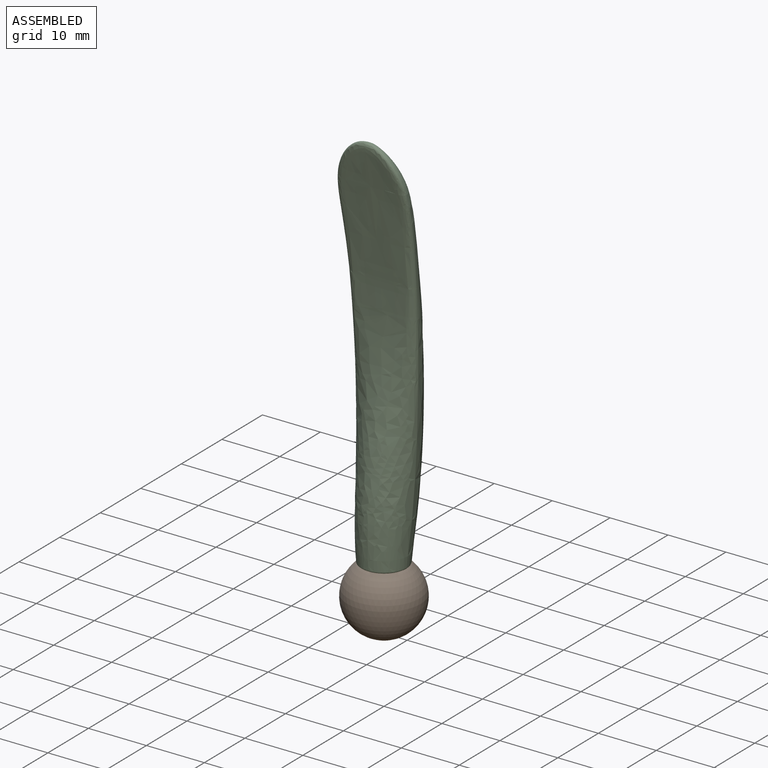
[diagram: assembled view]
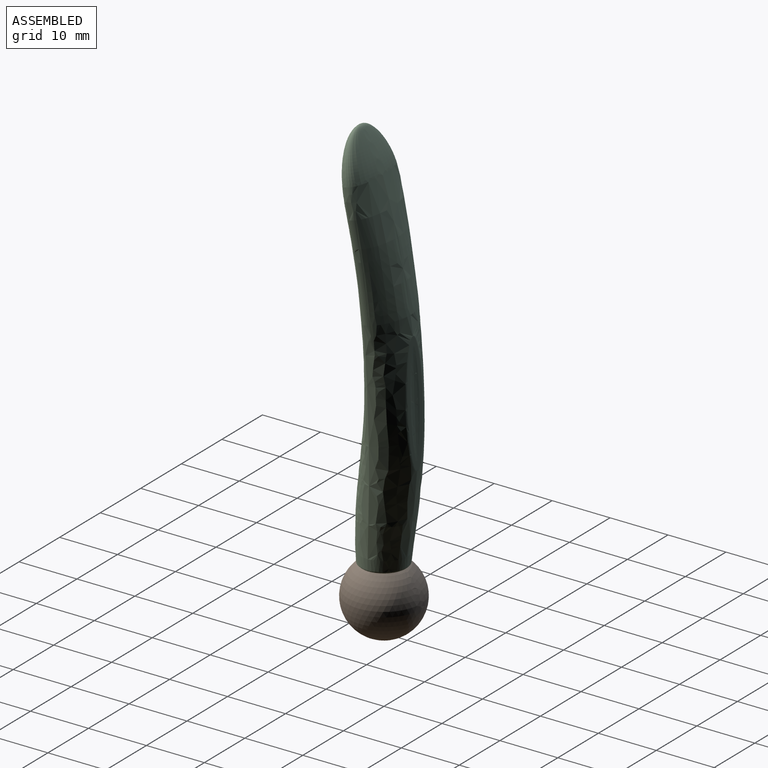
[diagram: assembled view, second angle]
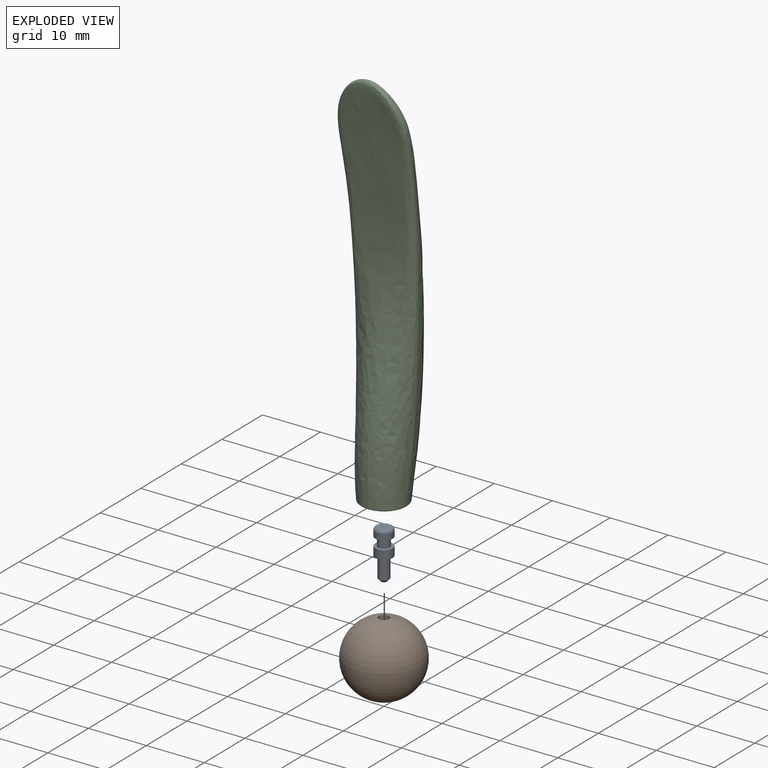
[diagram: exploded view]
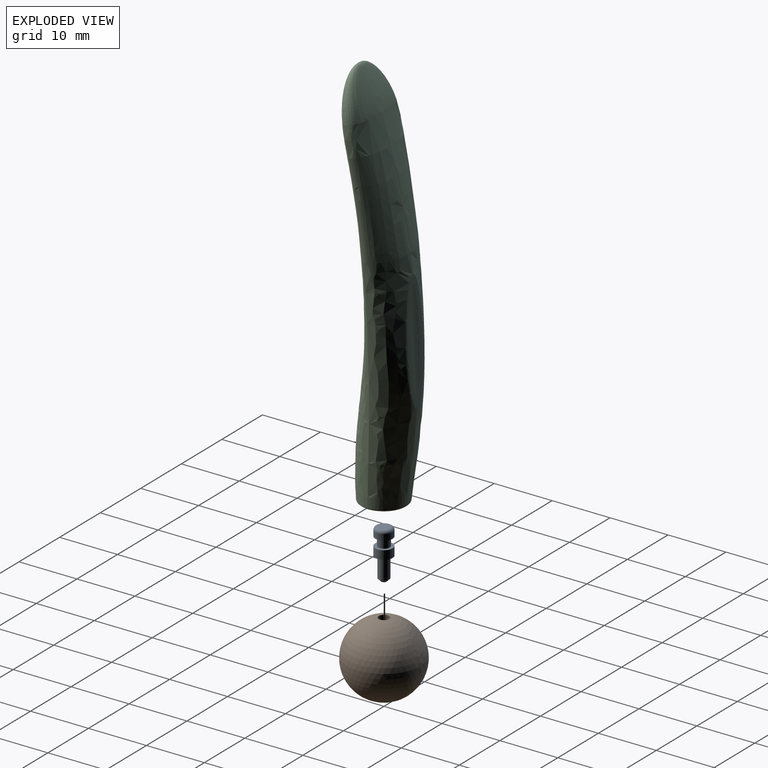
[diagram: exploded view, second angle]
ASSEMBLY  parts=3 mates=3
PART A: 11 faces, bbox 3.2x8.5x3.2 mm
  f0: cylinder r=1.5mm len=3mm, axis (0,1,0), area 14.1mm2, adj f3,f4
  f1: cylinder r=0.93mm len=3.5mm, axis (0,1,0), area 20.3mm2, adj f3,f10
  f2: plane 0.85x0.85mm, normal (0,1,0), area 0.6mm2, adj f10
  f3: plane 3x3mm, normal (0,1,0), area 4.4mm2, adj f0,f1
  f4: plane 3x3mm, normal (0,-1,0), area 3.9mm2, adj f0,f6
  f5: plane 3x3mm, normal (0,1,0), area 3.9mm2, adj f6,f9
  f6: cylinder r=1mm len=2mm, axis (0,-1,0), area 9.4mm2, adj f4,f5
  f7: plane 2x2mm, normal (0,-1,0), area 3.1mm2, adj f8
  f8: torus R=1mm, axis (0,-1,0), area 6.5mm2, adj f7,f9
  f9: cylinder r=1.5mm len=3mm, axis (0,1,0), area 9.4mm2, adj f5,f8
  f10: cone r=0.93mm half-angle=45deg, axis (0,-1,0), area 3mm2, adj f1,f2
PART B: 3 faces, bbox 12.7x12.7x12.6 mm
  f0: sphere r=6.35mm, area 504.1mm2, adj f1
  f1: cylinder r=0.9mm len=4.29mm, axis (0,0,1), area 24.2mm2, adj f0,f2
  f2: plane 1.8x1.8mm, normal (0,0,1), area 2.5mm2, adj f1
PART C: 80 faces, bbox 12.4x68.5x14.3 mm
  f0: bspline ~7.31x5.9mm, area 25.7mm2, adj f1,f78,f79
  f1: bspline ~9.32x6.21mm, area 16.5mm2, adj f0,f2,f76,f77
  f2: bspline ~6.68x4.87mm, area 13mm2, adj f1,f3,f75
  f3: bspline ~6.68x4.9mm, area 13mm2, adj f2,f4,f76
  f4: bspline ~10.66x4.89mm, area 41.4mm2, adj f3,f5,f74,f75
  f5: bspline ~9.56x6.87mm, area 65.7mm2, adj f4,f6,f7,f73,f74,f75,f77
  f6: bspline ~6.07x1.21mm, area 8.5mm2, adj f5,f7,f77,f79
  f7: bspline ~11.54x5.24mm, area 62mm2, adj f5,f6,f8,f72,f73,f79
  f8: bspline ~21x6.15mm, area 157.4mm2, adj f7,f9,f73,f74,f78,f79
  f9: bspline ~34.95x8.57mm, area 209.2mm2, adj f8,f10,f59,f70,f71,f72
  f10: bspline ~7.04x5.84mm, area 38.2mm2, adj f9,f11,f12,f72
  f11: bspline ~7.04x5.84mm, area 38mm2, adj f10,f12,f71,f72
  f12: bspline ~8.31x5mm, area 23mm2, adj f10,f11,f13,f58,f72
  f13: bspline ~7.91x4.05mm, area 7.3mm2, adj f12,f14,f16,f17
  f14: sphere r=6.4mm, area 0.2mm2, adj f13,f15,f16,f17
  f15: sphere r=6.4mm, area 0.6mm2, adj f14,f16,f17
  f16: bspline ~7.91x3.93mm, area 7.3mm2, adj f13,f14,f15,f17,f58
  f17: plane 7.03x6.94mm, normal (0,-0.99,0.13), area -0.8mm2, adj f13,f14,f15,f16,f18
  f18: sphere r=6.3mm, area 29mm2, adj f17,f19,f27,f28,f29,f30,f31,f32
  f19: cylinder r=1.5mm len=1.87mm, axis (0,-0.99,0.13), area 1.2mm2, adj f18,f20,f27,f57
  f20: plane 3.37x3.33mm, normal (0,-0.99,0.13), area 3mm2, adj f19,f21,f27,f28,f29,f30,f31,f32
  f21: torus R=1.2mm, axis (0,-0.99,0.13), area 2.1mm2, adj f20,f22
  f22: cylinder r=1mm len=2.15mm, axis (0,0.99,-0.13), area 8.2mm2, adj f21,f23
  f23: plane 3x2.97mm, normal (0,0.99,-0.13), area 3.9mm2, adj f22,f24
  f24: cylinder r=1.5mm len=3.11mm, axis (0,-0.99,0.13), area 9.4mm2, adj f23,f25
  f25: torus R=1mm, axis (0,-0.99,0.13), area 6.5mm2, adj f24,f26
  f26: plane 2x1.98mm, normal (0,-0.99,0.13), area 3.1mm2, adj f25
  f27: plane 1.84x0.31mm, normal (0.31,0.13,0.94), area 0.4mm2, adj f18,f19,f20,f28
  f28: plane 1.89x0.54mm, normal (0.95,-0.04,-0.31), area 0.6mm2, adj f18,f20,f27,f29
  f29: plane 1.84x0.31mm, normal (-0.31,-0.13,-0.94), area 0.4mm2, adj f18,f20,f28,f30
  f30: cylinder r=1.5mm len=1.85mm, axis (0,-0.99,0.13), area 1.2mm2, adj f18,f20,f29,f31
  f31: plane 1.84x0.41mm, normal (0.81,0.08,0.58), area 0.4mm2, adj f18,f20,f30,f32
  f32: plane 1.88x0.43mm, normal (0.59,-0.11,-0.8), area 0.6mm2, adj f18,f20,f31,f33
  f33: plane 1.84x0.41mm, normal (-0.81,-0.08,-0.58), area 0.4mm2, adj f18,f20,f32,f34
  f34: cylinder r=1.5mm len=1.81mm, axis (0,-0.99,0.13), area 1.2mm2, adj f18,f20,f33,f35
  f35: plane 1.84x0.45mm, normal (1,0,0), area 0.4mm2, adj f18,f20,f34,f36
  f36: plane 1.85x0.31mm, normal (0,-0.13,-0.99), area 0.6mm2, adj f18,f20,f35,f37
  f37: plane 1.84x0.45mm, normal (-1,0,0), area 0.4mm2, adj f18,f20,f36,f38
  f38: cylinder r=1.5mm len=1.9mm, axis (0,-0.99,0.13), area 2.9mm2, adj f18,f20,f37,f39
  f39: plane 1.84x0.31mm, normal (0.31,-0.13,-0.94), area 0.4mm2, adj f18,f20,f38,f40
  f40: plane 1.89x0.54mm, normal (-0.95,-0.04,-0.31), area 0.6mm2, adj f18,f20,f39,f41
  f41: plane 1.84x0.31mm, normal (-0.31,0.13,0.94), area 0.4mm2, adj f18,f20,f40,f42
  f42: cylinder r=1.5mm len=1.87mm, axis (0,-0.99,0.13), area 1.2mm2, adj f18,f20,f41,f43
  f43: plane 1.85x0.3mm, normal (-0.31,-0.13,-0.94), area 0.4mm2, adj f18,f20,f42,f44
  f44: plane 1.89x0.54mm, normal (-0.95,0.04,0.31), area 0.6mm2, adj f18,f20,f43,f45
  f45: plane 1.85x0.3mm, normal (0.31,0.13,0.94), area 0.4mm2, adj f18,f20,f44,f46
  f46: cylinder r=1.5mm len=1.85mm, axis (0,-0.99,0.13), area 1.2mm2, adj f18,f20,f45,f47
  f47: plane 1.86x0.41mm, normal (-0.81,-0.08,-0.58), area 0.4mm2, adj f18,f20,f46,f48
  f48: plane 1.88x0.43mm, normal (-0.59,0.11,0.8), area 0.6mm2, adj f18,f20,f47,f49
  f49: plane 1.86x0.41mm, normal (0.81,0.08,0.58), area 0.4mm2, adj f18,f20,f48,f50
  f50: cylinder r=1.5mm len=1.81mm, axis (0,-0.99,0.13), area 1.2mm2, adj f18,f20,f49,f51
  f51: plane 1.87x0.45mm, normal (-1,0,0), area 0.4mm2, adj f18,f20,f50,f52
  f52: plane 1.85x0.31mm, normal (0,0.13,0.99), area 0.6mm2, adj f18,f20,f51,f53
  f53: plane 1.87x0.45mm, normal (1,0,0), area 0.4mm2, adj f18,f20,f52,f54
  f54: cylinder r=1.5mm len=1.9mm, axis (0,-0.99,0.13), area 2.9mm2, adj f18,f20,f53,f55
  f55: plane 1.85x0.3mm, normal (-0.31,0.13,0.94), area 0.4mm2, adj f18,f20,f54,f56
  f56: plane 1.89x0.54mm, normal (0.95,0.04,0.31), area 0.6mm2, adj f18,f20,f55,f57
  f57: plane 1.85x0.3mm, normal (0.31,-0.13,-0.94), area 0.4mm2, adj f18,f19,f20,f56
  f58: bspline ~8.24x4.67mm, area 22.4mm2, adj f12,f16,f72
  f59: bspline ~5.37x1.23mm, area 0.4mm2, adj f9,f60,f69
  f60: bspline ~5.35x1.23mm, area 0.4mm2, adj f59,f61,f71
  f61: bspline ~0.25x0.11mm, area 0mm2, adj f60,f62,f67,f69
  f62: plane 20.72x2.13mm, normal (0,-0.1,-1), area 13.8mm2, adj f61,f63,f67,f69,f70
  f63: bspline ~17.69x1.74mm, area 2mm2, adj f62,f64,f66
  f64: bspline ~17.67x1.73mm, area 0mm2, adj f63,f65
  f65: bspline ~17.67x1.73mm, area 0mm2, adj f64,f66
  f66: bspline ~17.69x1.74mm, area 2mm2, adj f63,f65,f67
  f67: plane 20.72x2.13mm, normal (0,-0.1,-1), area 13.9mm2, adj f61,f62,f66,f68
  f68: bspline ~20.81x2.28mm, area 7.7mm2, adj f67,f70,f71
  f69: bspline ~1.56x0.13mm, area 0mm2, adj f59,f61,f62
  f70: bspline ~20.82x2.35mm, area 7.7mm2, adj f9,f62,f68
  f71: bspline ~34.95x8.56mm, area 209.4mm2, adj f9,f11,f60,f68,f72,f79
  f72: bspline ~39.3x11.39mm, area 486.1mm2, adj f7,f9,f10,f11,f12,f58,f71
  f73: bspline ~6.07x1.2mm, area 8.5mm2, adj f5,f7,f8,f74
  f74: bspline ~13.7x1.96mm, area 16.8mm2, adj f4,f5,f8,f73,f76
  f75: bspline ~10.64x4.86mm, area 41.4mm2, adj f2,f4,f5,f77
  f76: bspline ~9.37x6.03mm, area 16.5mm2, adj f1,f3,f74,f78
  f77: bspline ~13.75x1.98mm, area 16.8mm2, adj f1,f5,f6,f75,f79
  f78: bspline ~7.31x5.9mm, area 26.1mm2, adj f0,f8,f76
  f79: bspline ~21x6.16mm, area 157.5mm2, adj f0,f6,f7,f8,f71,f77
PLACE A rot(axis=(-1,0,0),90deg) t=(0,0,2.29)mm
PLACE B at identity
PLACE C rot(axis=(1,0,0),97.6deg) t=(0,-41.75,25.69)mm
MATE fastened B.f1 <-> A.f0  axis (0,0,1) through (0,0,6.29)mm
MATE planar A.f0 <-> C.f19  axis (0,0,1) through (0,0,10.79)mm
MATE cylindrical A.f0 <-> C.f21  axis (0,0,-1) through (0,0,6.29)mm
